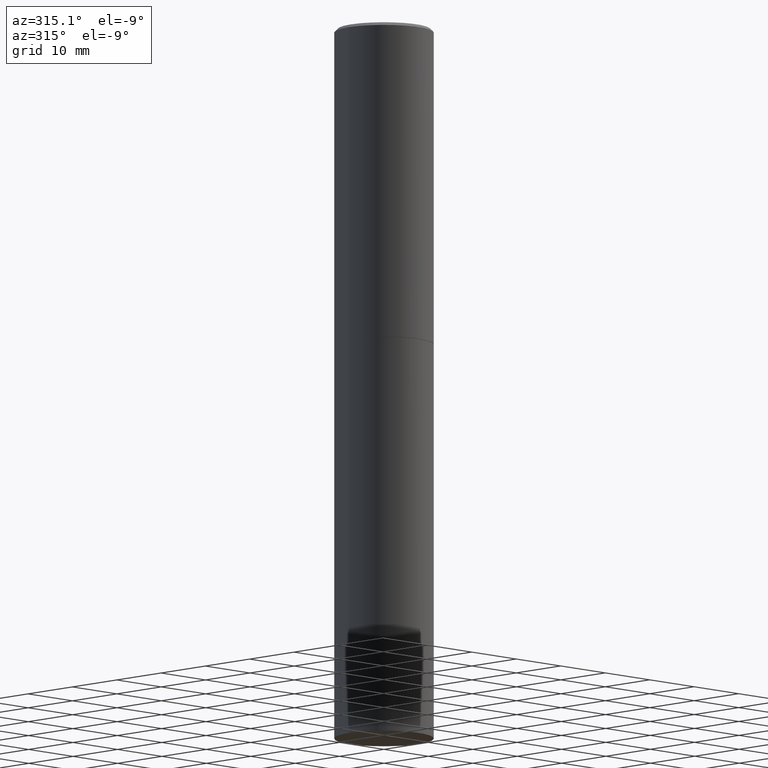
[diagram: clean part render]
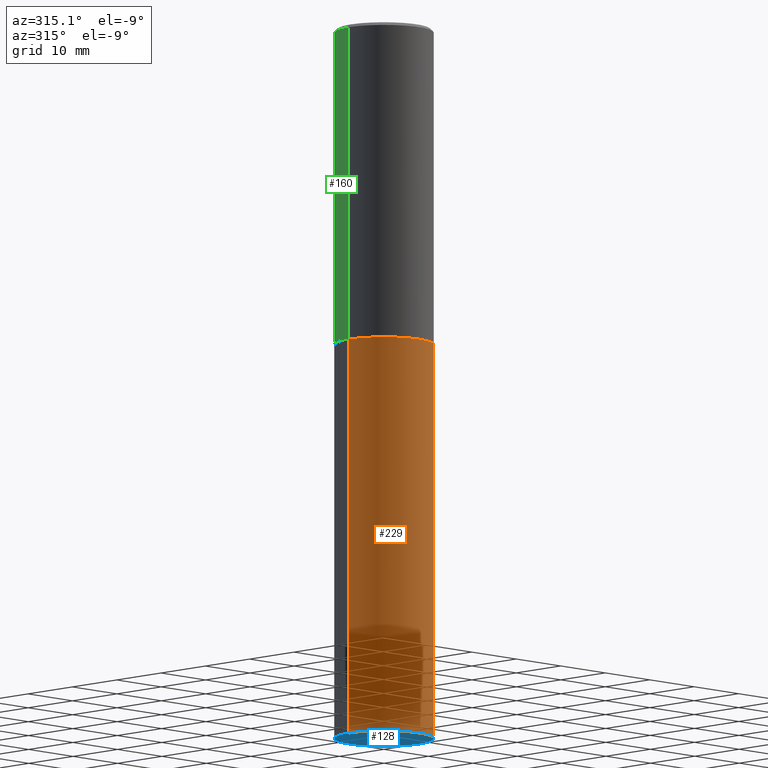
[diagram: same view with three faces highlighted in distinct colors, each labeled with its STEP entity id]
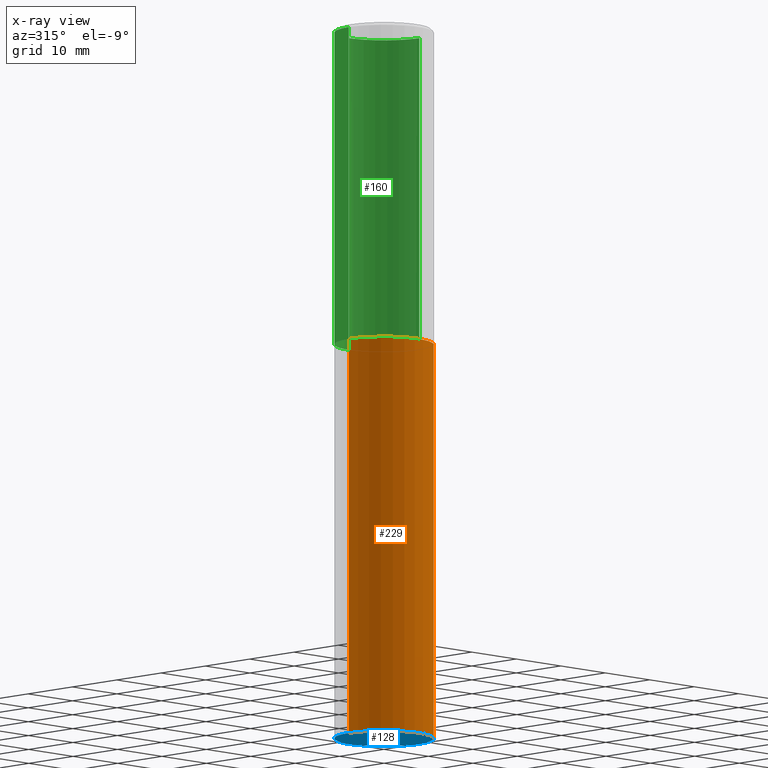
[diagram: x-ray of the same camera — body ghosted, the three highlighted faces saturated]
A machine part, auxiliary view with three faces highlighted in distinct colors.
The next image is the same camera in x-ray (body ghosted, the three faces saturated) — at least one of them is partly hidden behind the body in this view.
Their STEP definitions:

[orange] entity #229 — the highlighted cylindrical surface (partial cylindrical patch) has radius 7.9375 mm, axis along (-0, 0, 1).
#7 = ORIENTED_EDGE ( 'NONE', *, *, #235, .F. ) ;
#8 = CARTESIAN_POINT ( 'NONE',  ( 4.890937612370273194E-29, -6.982962677686291165E-15, -2.000000000000000000 ) ) ;
#10 = DIRECTION ( 'NONE',  ( 1.000000000000000000, -6.982962677686265133E-15, 0.000000000000000000 ) ) ;
#30 = VECTOR ( 'NONE', #107, 39.37007874015748143 ) ;
#33 = CARTESIAN_POINT ( 'NONE',  ( 0.3125000000000000000, -9.165138514463248723E-15, -2.000000000000000000 ) ) ;
#41 = FACE_OUTER_BOUND ( 'NONE', #87, .T. ) ;
#59 = CYLINDRICAL_SURFACE ( 'NONE', #309, 0.3125000000000000000 ) ;
#81 = CARTESIAN_POINT ( 'NONE',  ( 1.100460962783311469E-28, -1.571166602479415690E-14, -4.500000000000000000 ) ) ;
#87 = EDGE_LOOP ( 'NONE', ( #7, #90, #249, #124 ) ) ;
#90 = ORIENTED_EDGE ( 'NONE', *, *, #133, .T. ) ;
#107 = DIRECTION ( 'NONE',  ( -2.445468806185136877E-29, 3.491481338843145188E-15, 1.000000000000000000 ) ) ;
#118 = DIRECTION ( 'NONE',  ( 1.000000000000000000, -6.982962677686266711E-15, 4.876176775795936353E-29 ) ) ;
#119 = DIRECTION ( 'NONE',  ( -2.445468806185136877E-29, 3.491481338843145188E-15, 1.000000000000000000 ) ) ;
#124 = ORIENTED_EDGE ( 'NONE', *, *, #181, .F. ) ;
#131 = LINE ( 'NONE', #245, #30 ) ;
#133 = EDGE_CURVE ( 'NONE', #226, #354, #188, .T. ) ;
#134 = VECTOR ( 'NONE', #119, 39.37007874015748143 ) ;
#181 = EDGE_CURVE ( 'NONE', #263, #234, #304, .T. ) ;
#185 = DIRECTION ( 'NONE',  ( -2.445468806185136597E-29, 3.491481338843145583E-15, 1.000000000000000000 ) ) ;
#188 = CIRCLE ( 'NONE', #189, 0.3125000000000000000 ) ;
#189 = AXIS2_PLACEMENT_3D ( 'NONE', #81, #185, #306 ) ;
#226 = VERTEX_POINT ( 'NONE', #286 ) ;
#229 = ADVANCED_FACE ( 'NONE', ( #41 ), #59, .T. ) ;
#234 = VERTEX_POINT ( 'NONE', #33 ) ;
#235 = EDGE_CURVE ( 'NONE', #226, #263, #131, .T. ) ;
#245 = CARTESIAN_POINT ( 'NONE',  ( -0.3125000000000000000, 2.220446049250313081E-15, -1.537167215704658232E-29 ) ) ;
#249 = ORIENTED_EDGE ( 'NONE', *, *, #262, .T. ) ;
#257 = DIRECTION ( 'NONE',  ( -2.445468806185136597E-29, 3.491481338843145583E-15, 1.000000000000000000 ) ) ;
#262 = EDGE_CURVE ( 'NONE', #354, #234, #316, .T. ) ;
#263 = VERTEX_POINT ( 'NONE', #292 ) ;
#276 = CARTESIAN_POINT ( 'NONE',  ( 0.000000000000000000, 0.000000000000000000, 0.000000000000000000 ) ) ;
#286 = CARTESIAN_POINT ( 'NONE',  ( -0.3125000000000000000, -9.126868301989911345E-15, -4.500000000000000000 ) ) ;
#288 = CARTESIAN_POINT ( 'NONE',  ( 0.3125000000000000000, -2.182175836776958347E-15, 1.523805242436230075E-29 ) ) ;
#292 = CARTESIAN_POINT ( 'NONE',  ( -0.3125000000000000000, -9.126868301989911345E-15, -2.000000000000000000 ) ) ;
#303 = CARTESIAN_POINT ( 'NONE',  ( 0.3125000000000000000, -1.789384186157111367E-14, -4.500000000000000000 ) ) ;
#304 = CIRCLE ( 'NONE', #359, 0.3125000000000000000 ) ;
#306 = DIRECTION ( 'NONE',  ( 1.000000000000000000, -6.982962677686269077E-15, 0.000000000000000000 ) ) ;
#309 = AXIS2_PLACEMENT_3D ( 'NONE', #276, #257, #118 ) ;
#315 = DIRECTION ( 'NONE',  ( -2.445468806185136597E-29, 3.491481338843145583E-15, 1.000000000000000000 ) ) ;
#316 = LINE ( 'NONE', #288, #134 ) ;
#354 = VERTEX_POINT ( 'NONE', #303 ) ;
#359 = AXIS2_PLACEMENT_3D ( 'NONE', #8, #315, #10 ) ;

[blue] entity #128 — the highlighted planar face has unit normal (0, -0, -1).
#11 = AXIS2_PLACEMENT_3D ( 'NONE', #21, #211, #333 ) ;
#13 = DIRECTION ( 'NONE',  ( 1.000000000000000000, -6.982962677686269077E-15, 0.000000000000000000 ) ) ;
#21 = CARTESIAN_POINT ( 'NONE',  ( 2.182175836777068393E-15, 0.3124999999999842903, -4.500000000000000888 ) ) ;
#48 = FACE_OUTER_BOUND ( 'NONE', #351, .T. ) ;
#62 = CARTESIAN_POINT ( 'NONE',  ( 1.100460962783311469E-28, -1.571166602479415690E-14, -4.500000000000000000 ) ) ;
#81 = CARTESIAN_POINT ( 'NONE',  ( 1.100460962783311469E-28, -1.571166602479415690E-14, -4.500000000000000000 ) ) ;
#111 = CIRCLE ( 'NONE', #157, 0.3125000000000000000 ) ;
#120 = ORIENTED_EDGE ( 'NONE', *, *, #133, .F. ) ;
#128 = ADVANCED_FACE ( 'NONE', ( #48 ), #179, .T. ) ;
#133 = EDGE_CURVE ( 'NONE', #226, #354, #188, .T. ) ;
#157 = AXIS2_PLACEMENT_3D ( 'NONE', #62, #173, #13 ) ;
#173 = DIRECTION ( 'NONE',  ( -2.445468806185136597E-29, 3.491481338843145583E-15, 1.000000000000000000 ) ) ;
#179 = PLANE ( 'NONE',  #11 ) ;
#185 = DIRECTION ( 'NONE',  ( -2.445468806185136597E-29, 3.491481338843145583E-15, 1.000000000000000000 ) ) ;
#188 = CIRCLE ( 'NONE', #189, 0.3125000000000000000 ) ;
#189 = AXIS2_PLACEMENT_3D ( 'NONE', #81, #185, #306 ) ;
#211 = DIRECTION ( 'NONE',  ( 2.438088387897960049E-29, -3.491481338843145188E-15, -1.000000000000000000 ) ) ;
#226 = VERTEX_POINT ( 'NONE', #286 ) ;
#246 = EDGE_CURVE ( 'NONE', #354, #226, #111, .T. ) ;
#268 = ORIENTED_EDGE ( 'NONE', *, *, #246, .F. ) ;
#286 = CARTESIAN_POINT ( 'NONE',  ( -0.3125000000000000000, -9.126868301989911345E-15, -4.500000000000000000 ) ) ;
#303 = CARTESIAN_POINT ( 'NONE',  ( 0.3125000000000000000, -1.789384186157111367E-14, -4.500000000000000000 ) ) ;
#306 = DIRECTION ( 'NONE',  ( 1.000000000000000000, -6.982962677686269077E-15, 0.000000000000000000 ) ) ;
#333 = DIRECTION ( 'NONE',  ( -1.000000000000000000, 6.982962677686265922E-15, -4.876176775795935793E-29 ) ) ;
#351 = EDGE_LOOP ( 'NONE', ( #268, #120 ) ) ;
#354 = VERTEX_POINT ( 'NONE', #303 ) ;

[green] entity #160 — the highlighted cylindrical surface (partial cylindrical patch) has radius 7.9375 mm, axis along (-0, 0, 1).
#15 = DIRECTION ( 'NONE',  ( -2.445468806185136597E-29, 3.491481338843145583E-15, 1.000000000000000000 ) ) ;
#22 = VERTEX_POINT ( 'NONE', #190 ) ;
#31 = DIRECTION ( 'NONE',  ( 1.000000000000000000, -6.982962677686269077E-15, 0.000000000000000000 ) ) ;
#37 = DIRECTION ( 'NONE',  ( -2.445468806185136877E-29, 3.491481338843145188E-15, 1.000000000000000000 ) ) ;
#52 = AXIS2_PLACEMENT_3D ( 'NONE', #259, #152, #31 ) ;
#69 = VECTOR ( 'NONE', #37, 39.37007874015748143 ) ;
#82 = VERTEX_POINT ( 'NONE', #338 ) ;
#85 = EDGE_CURVE ( 'NONE', #22, #82, #299, .T. ) ;
#109 = CYLINDRICAL_SURFACE ( 'NONE', #178, 0.3124999999999998890 ) ;
#114 = CARTESIAN_POINT ( 'NONE',  ( 0.3124999999999998890, -2.182175836776957558E-15, 1.523805242436229235E-29 ) ) ;
#136 = ORIENTED_EDGE ( 'NONE', *, *, #192, .F. ) ;
#148 = DIRECTION ( 'NONE',  ( 1.000000000000000000, -6.982962677686266711E-15, 4.876176775795935232E-29 ) ) ;
#151 = CARTESIAN_POINT ( 'NONE',  ( -0.3124999999999998335, 2.112346210000093866E-15, -0.02000000000000008021 ) ) ;
#152 = DIRECTION ( 'NONE',  ( -2.445468806185136597E-29, 3.491481338843145583E-15, 1.000000000000000000 ) ) ;
#154 = CARTESIAN_POINT ( 'NONE',  ( 0.3124999999999998335, -2.213735251080465334E-15, -0.02000000000000008021 ) ) ;
#160 = ADVANCED_FACE ( 'NONE', ( #164 ), #109, .T. ) ;
#164 = FACE_OUTER_BOUND ( 'NONE', #297, .T. ) ;
#168 = DIRECTION ( 'NONE',  ( -2.445468806185136877E-29, 3.491481338843145188E-15, 1.000000000000000000 ) ) ;
#170 = ORIENTED_EDGE ( 'NONE', *, *, #210, .T. ) ;
#172 = EDGE_CURVE ( 'NONE', #331, #346, #256, .T. ) ;
#178 = AXIS2_PLACEMENT_3D ( 'NONE', #217, #15, #148 ) ;
#187 = LINE ( 'NONE', #114, #69 ) ;
#190 = CARTESIAN_POINT ( 'NONE',  ( 0.3125000000000000000, -9.161647033124407294E-15, -1.998999999999999888 ) ) ;
#191 = AXIS2_PLACEMENT_3D ( 'NONE', #301, #266, #250 ) ;
#192 = EDGE_CURVE ( 'NONE', #22, #331, #187, .T. ) ;
#194 = LINE ( 'NONE', #318, #236 ) ;
#207 = ORIENTED_EDGE ( 'NONE', *, *, #172, .F. ) ;
#210 = EDGE_CURVE ( 'NONE', #82, #346, #194, .T. ) ;
#217 = CARTESIAN_POINT ( 'NONE',  ( 0.000000000000000000, 0.000000000000000000, 0.000000000000000000 ) ) ;
#236 = VECTOR ( 'NONE', #168, 39.37007874015748143 ) ;
#250 = DIRECTION ( 'NONE',  ( 1.000000000000000000, -6.982962677686265133E-15, 0.000000000000000000 ) ) ;
#256 = CIRCLE ( 'NONE', #191, 0.3124999999999998335 ) ;
#259 = CARTESIAN_POINT ( 'NONE',  ( 4.888492143564087591E-29, -6.979471196347447369E-15, -1.998999999999999888 ) ) ;
#266 = DIRECTION ( 'NONE',  ( -2.445468806185136597E-29, 3.491481338843145583E-15, 1.000000000000000000 ) ) ;
#297 = EDGE_LOOP ( 'NONE', ( #358, #170, #207, #136 ) ) ;
#299 = CIRCLE ( 'NONE', #52, 0.3125000000000000000 ) ;
#301 = CARTESIAN_POINT ( 'NONE',  ( 4.890937612370293302E-31, -6.982962677686318726E-17, -0.02000000000000008021 ) ) ;
#318 = CARTESIAN_POINT ( 'NONE',  ( -0.3124999999999998890, 2.220446049250312292E-15, -1.537167215704657391E-29 ) ) ;
#331 = VERTEX_POINT ( 'NONE', #154 ) ;
#338 = CARTESIAN_POINT ( 'NONE',  ( -0.3125000000000000000, -1.304204362311840281E-15, -1.998999999999999888 ) ) ;
#346 = VERTEX_POINT ( 'NONE', #151 ) ;
#358 = ORIENTED_EDGE ( 'NONE', *, *, #85, .T. ) ;